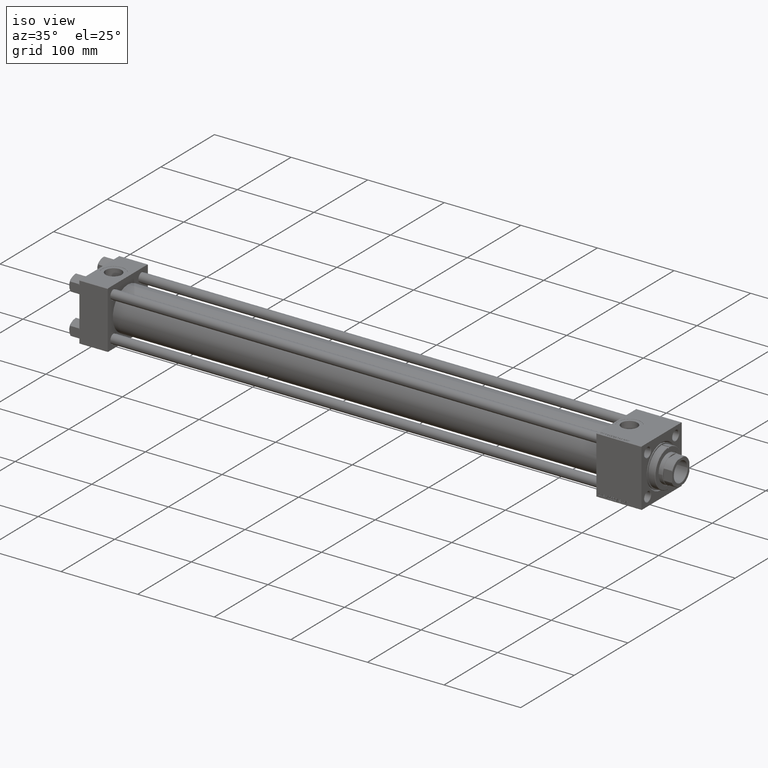
[diagram: clean part render]
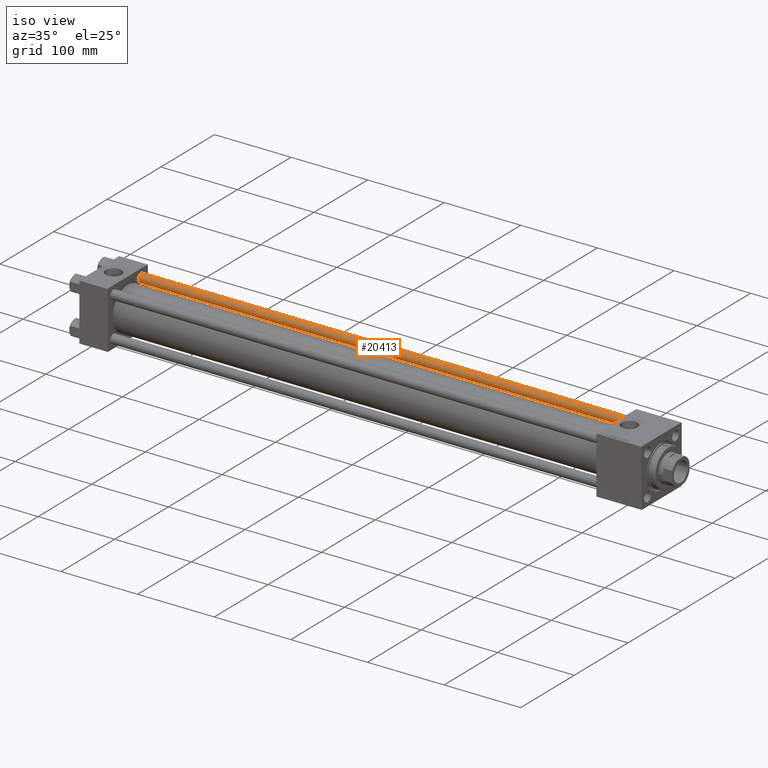
[diagram: same view with one face highlighted and labeled with its STEP entity id]
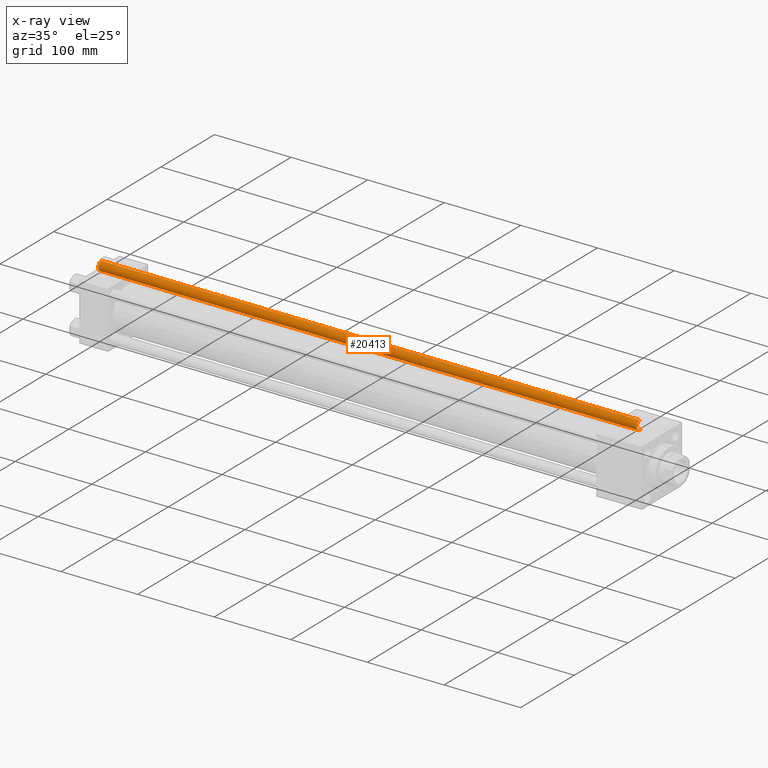
[diagram: x-ray of the same camera — body ghosted, the highlighted face saturated]
A machine part, iso view. The second image highlights one B-rep face of the part: STEP entity #20413.
The next image is the same camera in x-ray: the body ghosted, the highlighted face saturated — about 0% of this face is hidden behind the body in this view.
In plain terms, the highlighted cylindrical surface (edge-blend (fillet) strip) has radius 6 mm, axis along (-1, 0, 0).
Its self-contained STEP definition (entity closure, byte-faithful):
#755 = DIRECTION ( 'NONE',  ( -0.000000000000000000, -0.000000000000000000, -1.000000000000000000 ) ) ;
#927 = DIRECTION ( 'NONE',  ( 1.000000000000000000, 0.000000000000000000, 0.000000000000000000 ) ) ;
#933 = CARTESIAN_POINT ( 'NONE',  ( 6.000000000000000888, 7.347880794884120722E-16, 703.5000000000000000 ) ) ;
#1924 = DIRECTION ( 'NONE',  ( -1.000000000000000000, 0.000000000000000000, 0.000000000000000000 ) ) ;
#3738 = EDGE_CURVE ( 'NONE', #40618, #17739, #12670, .T. ) ;
#4039 = DIRECTION ( 'NONE',  ( 0.000000000000000000, 0.000000000000000000, -1.000000000000000000 ) ) ;
#4742 = ORIENTED_EDGE ( 'NONE', *, *, #33453, .T. ) ;
#5737 = CARTESIAN_POINT ( 'NONE',  ( 0.000000000000000000, 0.000000000000000000, 704.0000000000000000 ) ) ;
#6242 = DIRECTION ( 'NONE',  ( -0.000000000000000000, -0.000000000000000000, -1.000000000000000000 ) ) ;
#8057 = ORIENTED_EDGE ( 'NONE', *, *, #3738, .T. ) ;
#10186 = CIRCLE ( 'NONE', #13413, 6.000000000000000888 ) ;
#12222 = ORIENTED_EDGE ( 'NONE', *, *, #17890, .T. ) ;
#12644 = DIRECTION ( 'NONE',  ( -0.000000000000000000, -0.000000000000000000, 1.000000000000000000 ) ) ;
#12670 = CIRCLE ( 'NONE', #24870, 6.000000000000000888 ) ;
#13413 = AXIS2_PLACEMENT_3D ( 'NONE', #42994, #12644, #927 ) ;
#14686 = CARTESIAN_POINT ( 'NONE',  ( 6.000000000000000888, 7.347880794884120722E-16, 0.4999999999998339106 ) ) ;
#15458 = CARTESIAN_POINT ( 'NONE',  ( -6.000000000000000888, 0.000000000000000000, 704.0000000000000000 ) ) ;
#16276 = VECTOR ( 'NONE', #34345, 1000.000000000000000 ) ;
#17739 = VERTEX_POINT ( 'NONE', #18028 ) ;
#17890 = EDGE_CURVE ( 'NONE', #17739, #25711, #50415, .T. ) ;
#18028 = CARTESIAN_POINT ( 'NONE',  ( -6.000000000000000888, 0.000000000000000000, 703.5000000000000000 ) ) ;
#20413 = ADVANCED_FACE ( 'NONE', ( #34010 ), #28906, .T. ) ;
#23545 = AXIS2_PLACEMENT_3D ( 'NONE', #5737, #6242, #1924 ) ;
#24870 = AXIS2_PLACEMENT_3D ( 'NONE', #46609, #4039, #27182 ) ;
#25711 = VERTEX_POINT ( 'NONE', #43304 ) ;
#27182 = DIRECTION ( 'NONE',  ( 1.000000000000000000, 0.000000000000000000, 0.000000000000000000 ) ) ;
#27244 = EDGE_LOOP ( 'NONE', ( #39833, #8057, #12222, #4742 ) ) ;
#28906 = CYLINDRICAL_SURFACE ( 'NONE', #23545, 6.000000000000000888 ) ;
#31846 = VERTEX_POINT ( 'NONE', #14686 ) ;
#33453 = EDGE_CURVE ( 'NONE', #25711, #31846, #10186, .T. ) ;
#34010 = FACE_OUTER_BOUND ( 'NONE', #27244, .T. ) ;
#34345 = DIRECTION ( 'NONE',  ( -0.000000000000000000, -0.000000000000000000, -1.000000000000000000 ) ) ;
#36456 = EDGE_CURVE ( 'NONE', #40618, #31846, #47165, .T. ) ;
#39833 = ORIENTED_EDGE ( 'NONE', *, *, #36456, .F. ) ;
#40266 = VECTOR ( 'NONE', #755, 1000.000000000000000 ) ;
#40618 = VERTEX_POINT ( 'NONE', #933 ) ;
#42994 = CARTESIAN_POINT ( 'NONE',  ( 0.000000000000000000, 0.000000000000000000, 0.4999999999998339106 ) ) ;
#43304 = CARTESIAN_POINT ( 'NONE',  ( -6.000000000000000888, 0.000000000000000000, 0.4999999999998339106 ) ) ;
#43582 = CARTESIAN_POINT ( 'NONE',  ( 6.000000000000000888, 7.347880794884120722E-16, 704.0000000000000000 ) ) ;
#46609 = CARTESIAN_POINT ( 'NONE',  ( 0.000000000000000000, 0.000000000000000000, 703.5000000000000000 ) ) ;
#47165 = LINE ( 'NONE', #43582, #40266 ) ;
#50415 = LINE ( 'NONE', #15458, #16276 ) ;